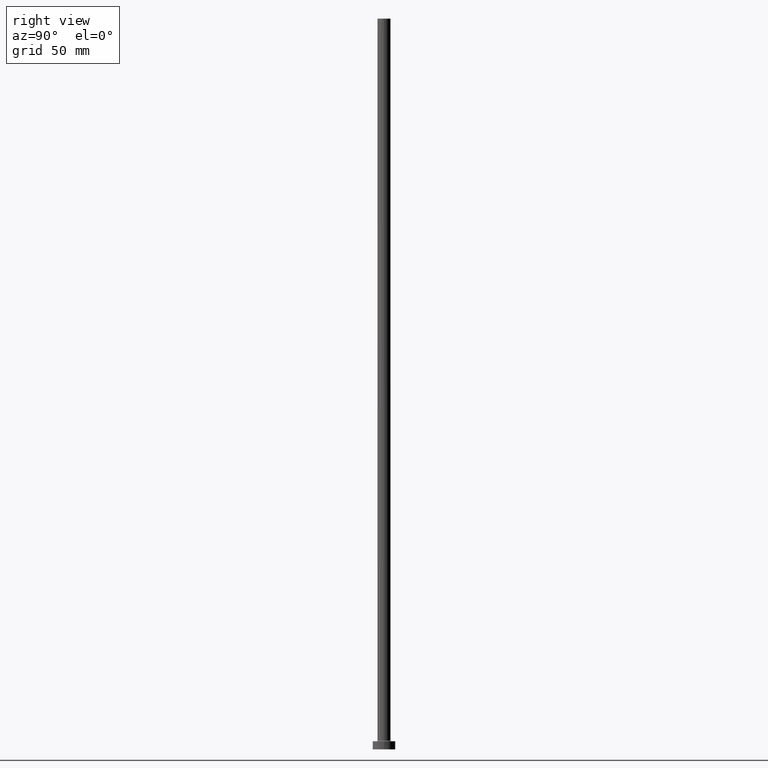
[diagram: clean part render]
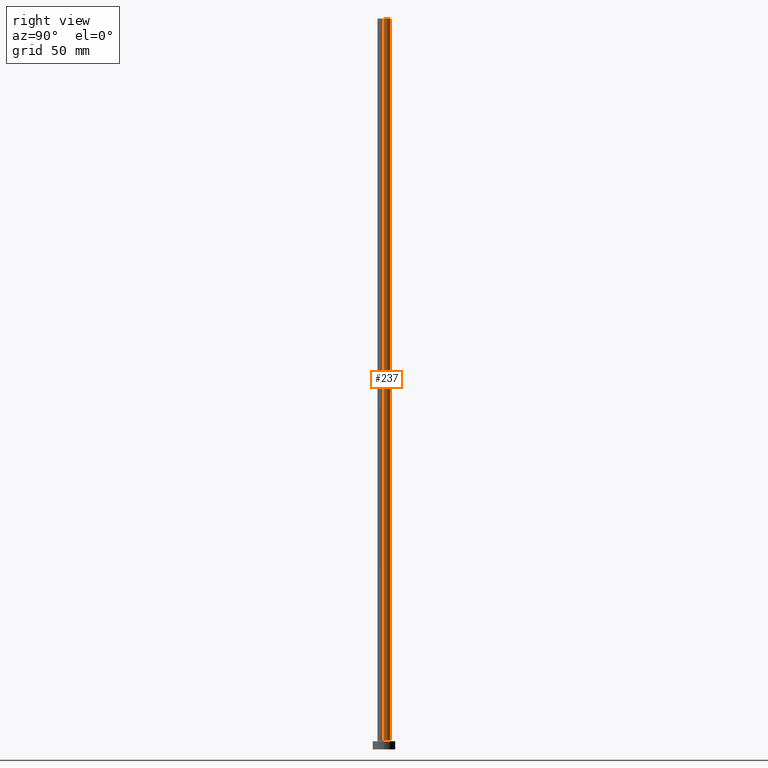
[diagram: same view with one face highlighted and labeled with its STEP entity id]
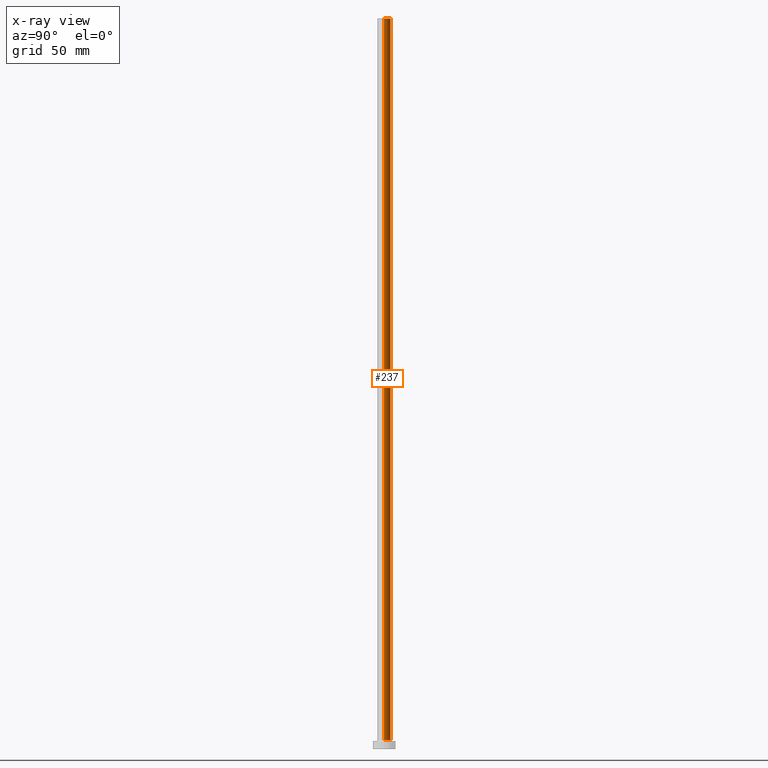
[diagram: x-ray of the same camera — body ghosted, the highlighted face saturated]
A machine part, right view. The second image highlights one B-rep face of the part: STEP entity #237.
The next image is the same camera in x-ray: the body ghosted, the highlighted face saturated — about 0% of this face is hidden behind the body in this view.
In plain terms, the highlighted cylindrical surface (edge-blend (fillet) strip) has radius 4 mm, axis along (-0, -0, -1).
Its self-contained STEP definition (entity closure, byte-faithful):
#5 = VERTEX_POINT ( 'NONE', #152 ) ;
#11 = AXIS2_PLACEMENT_3D ( 'NONE', #276, #168, #234 ) ;
#16 = CARTESIAN_POINT ( 'NONE',  ( 4.000000000000000000, 4.898587196589412829E-16, 450.0000000000000000 ) ) ;
#74 = ORIENTED_EDGE ( 'NONE', *, *, #323, .T. ) ;
#80 = CIRCLE ( 'NONE', #183, 4.000000000000000000 ) ;
#85 = ORIENTED_EDGE ( 'NONE', *, *, #461, .F. ) ;
#97 = DIRECTION ( 'NONE',  ( -0.000000000000000000, -0.000000000000000000, -1.000000000000000000 ) ) ;
#108 = CARTESIAN_POINT ( 'NONE',  ( 0.000000000000000000, 0.000000000000000000, 450.0000000000000000 ) ) ;
#122 = CYLINDRICAL_SURFACE ( 'NONE', #257, 4.000000000000000000 ) ;
#144 = CARTESIAN_POINT ( 'NONE',  ( -4.000000000000000000, 0.000000000000000000, 450.0000000000000000 ) ) ;
#151 = EDGE_LOOP ( 'NONE', ( #188, #391, #74, #85 ) ) ;
#152 = CARTESIAN_POINT ( 'NONE',  ( -4.000000000000000000, 0.000000000000000000, 5.500000000000005329 ) ) ;
#160 = CARTESIAN_POINT ( 'NONE',  ( 0.000000000000000000, 0.000000000000000000, 450.0000000000000000 ) ) ;
#168 = DIRECTION ( 'NONE',  ( 0.000000000000000000, 0.000000000000000000, 1.000000000000000000 ) ) ;
#177 = LINE ( 'NONE', #144, #438 ) ;
#183 = AXIS2_PLACEMENT_3D ( 'NONE', #108, #412, #407 ) ;
#187 = CARTESIAN_POINT ( 'NONE',  ( 4.000000000000000000, 4.898587196589412829E-16, 450.0000000000000000 ) ) ;
#188 = ORIENTED_EDGE ( 'NONE', *, *, #394, .F. ) ;
#191 = CIRCLE ( 'NONE', #11, 4.000000000000000000 ) ;
#221 = VERTEX_POINT ( 'NONE', #304 ) ;
#224 = DIRECTION ( 'NONE',  ( -1.000000000000000000, 0.000000000000000000, 0.000000000000000000 ) ) ;
#234 = DIRECTION ( 'NONE',  ( 1.000000000000000000, 0.000000000000000000, 0.000000000000000000 ) ) ;
#237 = ADVANCED_FACE ( 'NONE', ( #403 ), #122, .T. ) ;
#250 = EDGE_CURVE ( 'NONE', #457, #362, #255, .T. ) ;
#251 = DIRECTION ( 'NONE',  ( -0.000000000000000000, -0.000000000000000000, -1.000000000000000000 ) ) ;
#255 = LINE ( 'NONE', #16, #283 ) ;
#257 = AXIS2_PLACEMENT_3D ( 'NONE', #160, #97, #224 ) ;
#276 = CARTESIAN_POINT ( 'NONE',  ( 0.000000000000000000, 0.000000000000000000, 5.500000000000005329 ) ) ;
#278 = CARTESIAN_POINT ( 'NONE',  ( 4.000000000000000000, 4.898587196589412829E-16, 5.500000000000005329 ) ) ;
#283 = VECTOR ( 'NONE', #371, 1000.000000000000000 ) ;
#304 = CARTESIAN_POINT ( 'NONE',  ( -4.000000000000000000, 0.000000000000000000, 450.0000000000000000 ) ) ;
#323 = EDGE_CURVE ( 'NONE', #362, #5, #191, .T. ) ;
#362 = VERTEX_POINT ( 'NONE', #278 ) ;
#371 = DIRECTION ( 'NONE',  ( -0.000000000000000000, -0.000000000000000000, -1.000000000000000000 ) ) ;
#391 = ORIENTED_EDGE ( 'NONE', *, *, #250, .T. ) ;
#394 = EDGE_CURVE ( 'NONE', #457, #221, #80, .T. ) ;
#403 = FACE_OUTER_BOUND ( 'NONE', #151, .T. ) ;
#407 = DIRECTION ( 'NONE',  ( 1.000000000000000000, 0.000000000000000000, 0.000000000000000000 ) ) ;
#412 = DIRECTION ( 'NONE',  ( 0.000000000000000000, 0.000000000000000000, 1.000000000000000000 ) ) ;
#438 = VECTOR ( 'NONE', #251, 1000.000000000000000 ) ;
#457 = VERTEX_POINT ( 'NONE', #187 ) ;
#461 = EDGE_CURVE ( 'NONE', #221, #5, #177, .T. ) ;